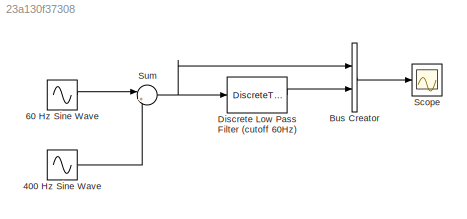
MODEL slx_23a130f37308
KIND model
BLOCK [Sin] 400 Hz Sine Wave
  Frequency = 400*2*pi
  Ports = [0, 1]
  SampleTime = 0
BLOCK [Sin] 60 Hz Sine Wave
  Frequency = 30*2*pi
  Ports = [0, 1]
  SampleTime = 0
BLOCK [BusCreator] Bus Creator
  DisplayOption = bar
  Inputs = 2
  Ports = [2, 1]
BLOCK [DiscreteTransferFcn] Discrete Low Pass Filter (cutoff 60Hz)
  Denominator = Gd.den{1}
  InputPortMap = u0
  Numerator = Gd.num{1}
  Ports = [1, 1]
  SampleTime = Gd.Ts
BLOCK [Scope] Scope
  DataFormat = StructureWithTime
  Floating = off
  NumInputPorts = 1
  Ports = [1]
  SampleTime = 0
  ShowLegends = off
  ZoomMode = xonly
BLOCK [Sum] Sum
  IconShape = round
  InputSameDT = off
  Inputs = |++
  OutDataTypeStr = Inherit: Inherit via internal rule
  Ports = [2, 1]
  SaturateOnIntegerOverflow = off
LINE 400 Hz Sine Wave:1 -> Sum:2
LINE 60 Hz Sine Wave:1 -> Sum:1
LINE Bus Creator:1 -> Scope:1
LINE Discrete Low Pass Filter (cutoff 60Hz):1 -> Bus Creator:2
NET Sum:1 -> Bus Creator:1, Discrete Low Pass Filter (cutoff 60Hz):1
note: NET lines group one-source signal fan-out (src -> all destinations, sorted); 1:1 wires keep LINE
